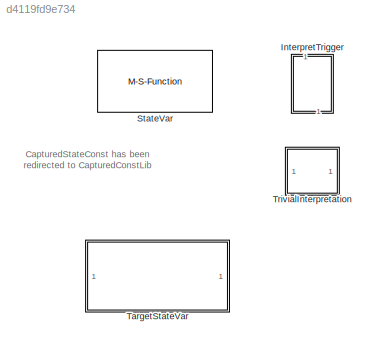
MODEL slx_d4119fd9e734
KIND library
CONFIG AbsTol = auto
CONFIG EnableMultiTasking = off
CONFIG FixedStep = auto
CONFIG MaxStep = auto
CONFIG MinStep = auto
CONFIG RelTol = 1e-3
CONFIG SampleTimeConstraint = Unconstrained
CONFIG SolverName = VariableStepAuto
CONFIG StartTime = 0.0
CONFIG StopTime = 10.0
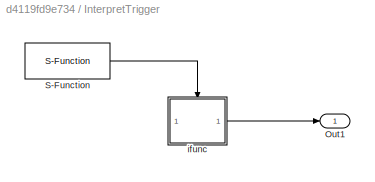
BLOCK [SubSystem] InterpretTrigger
  MoveFcn = InterpretTriggerMask.CB_TriggerInit(gcbh);
  NameLocation = right
BLOCK [Outport] InterpretTrigger/Out1
  VectorParamsAs1DForOutWhenUnconnected = off
BLOCK [S-Function] InterpretTrigger/S-Function
  EnableBusSupport = off
  FunctionName = InterpretTrigger
  Parameters = Trigger,TSPs,States,0
  SFcnIsStateOwnerBlock = off
  SFunctionDeploymentMode = off
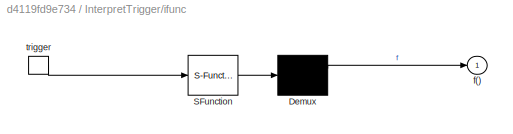
BLOCK [SubSystem] InterpretTrigger/ifunc
  ErrorFcn = Stateflow.Translate.translate
  PermitHierarchicalResolution = ExplicitOnly
  RTWFcnName = ['RtcReqRsp_' MessagePath]
  RTWFileName = [ModelRootName(bdroot) '_RTC_REQ_RSP']
  RTWSystemCode = Nonreusable function
  SFBlockType = MATLAB Function
  TreatAsAtomicUnit = on
BLOCK [Demux] InterpretTrigger/ifunc/ Demux 
  Outputs = 1
BLOCK [S-Function] InterpretTrigger/ifunc/ SFunction 
  EnableBusSupport = off
  FunctionName = sf_sfun
  PortCounts = [1 1]
  SFcnIsStateOwnerBlock = off
  SFunctionDeploymentMode = off
  Tag = Stateflow S-Function 9
BLOCK [Outport] InterpretTrigger/ifunc/f()
  VectorParamsAs1DForOutWhenUnconnected = off
BLOCK [TriggerPort] InterpretTrigger/ifunc/trigger
  ShowOutputPort = on
  StatesWhenEnabling = held
  TriggerType = function-call
  VariantControl = (inherit)
BLOCK [M-S-Function] StateVar
  FunctionName = StateVarSFunc
  MoveFcn = StateVarMask.CB_TriggerInit(gcbh);
  Parameters = activeStatePath,trigger
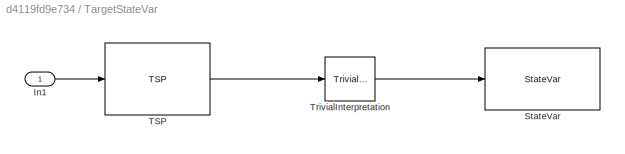
BLOCK [SubSystem] TargetStateVar
  MoveFcn = TargetStateVarMask.CB_TriggerInit(gcbh);
BLOCK [Inport] TargetStateVar/In1
BLOCK [Reference] TargetStateVar/StateVar  REF=$bdroot/StateVar
  SourceBlock = $bdroot/StateVar
  SourceType = Talaria State Variable
BLOCK [Reference] TargetStateVar/TSP  REF=TSP/TSP
  SourceBlock = TSP/TSP
  SourceProductName = Bose Talaria
  SourceType = Talaria Target State Probe
BLOCK [Reference] TargetStateVar/TrivialInterpretation  REF=$bdroot/TrivialInterpretation
  SourceBlock = $bdroot/TrivialInterpretation
  SourceType = Talaria Trivial Interpretation
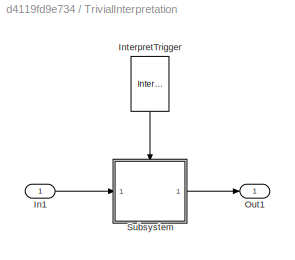
BLOCK [SubSystem] TrivialInterpretation
  MoveFcn = TrivialInterpretationMask.CB_TriggerInit(gcbh);
BLOCK [Inport] TrivialInterpretation/In1
BLOCK [Reference] TrivialInterpretation/InterpretTrigger  REF=$bdroot/InterpretTrigger
  NameLocation = left
  SourceBlock = $bdroot/InterpretTrigger
  SourceType = Talaria Interpret Trigger
BLOCK [Outport] TrivialInterpretation/Out1
  VectorParamsAs1DForOutWhenUnconnected = off
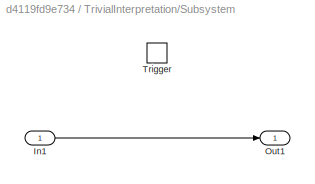
BLOCK [SubSystem] TrivialInterpretation/Subsystem
BLOCK [Inport] TrivialInterpretation/Subsystem/In1
BLOCK [Outport] TrivialInterpretation/Subsystem/Out1
  VectorParamsAs1DForOutWhenUnconnected = off
BLOCK [TriggerPort] TrivialInterpretation/Subsystem/Trigger
  PortDimensions = 1
  StatesWhenEnabling = held
  TriggerType = function-call
  VariantControl = Variant
ANNOTATION (root): CapturedStateConst has been redirected to CapturedConstLib
LINE InterpretTrigger/S-Function:1 -> InterpretTrigger/ifunc:trigger
LINE InterpretTrigger/ifunc:1 -> InterpretTrigger/Out1:1
LINE TrivialInterpretation/In1:1 -> TrivialInterpretation/Subsystem:1
LINE TrivialInterpretation/InterpretTrigger:1 -> TrivialInterpretation/Subsystem:trigger
LINE TrivialInterpretation/Subsystem/In1:1 -> TrivialInterpretation/Subsystem/Out1:1
LINE TrivialInterpretation/Subsystem:1 -> TrivialInterpretation/Out1:1
CHART InterpretTrigger/ifunc states=1 transitions=1
  STATE_LABEL 'eML_blk_kernel()'
  STATE_LABEL 'SCRIPT:\nfunction fcn\n% This function serves only to invoke a function trigger output\nf();\n'
CHART  states=0 transitions=0
